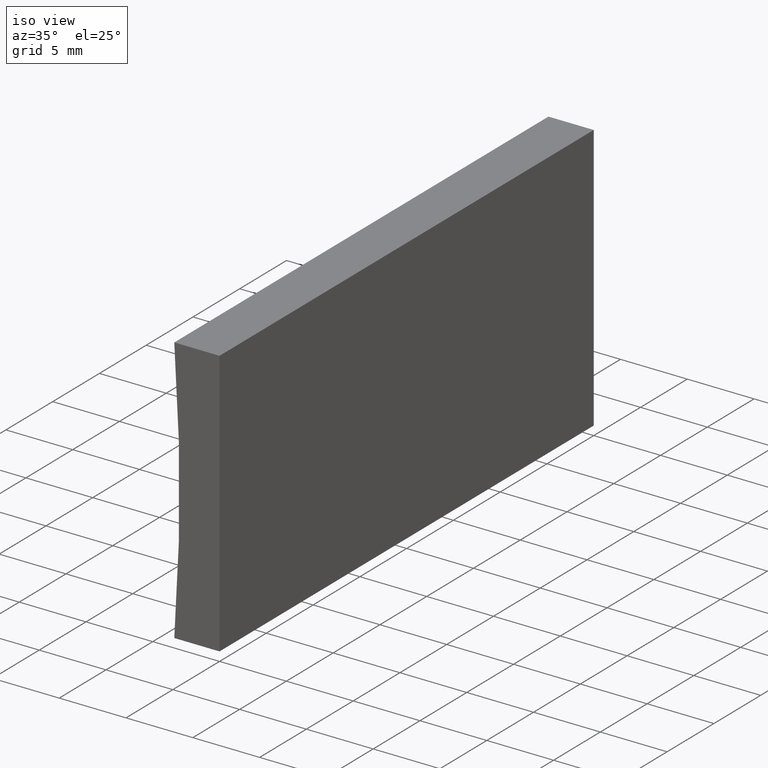
[diagram: clean part render]
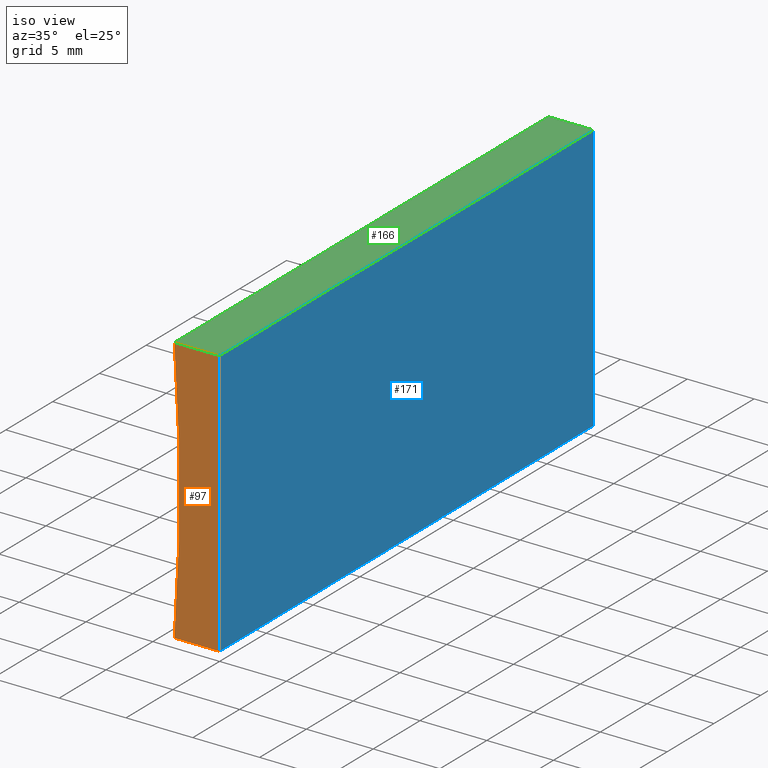
[diagram: same view with three faces highlighted in distinct colors, each labeled with its STEP entity id]
A machine part, iso view with three faces highlighted in distinct colors.
Their STEP definitions:

[orange] entity #97 — the highlighted planar face has unit normal (0, 1, 0).
#3 = EDGE_LOOP ( 'NONE', ( #196, #32, #201, #31 ) ) ;
#6 = CARTESIAN_POINT ( 'NONE',  ( 0.0000000000000000000, 0.0000000000000000000, 0.0000000000000000000 ) ) ;
#15 = PLANE ( 'NONE',  #30 ) ;
#18 = DIRECTION ( 'NONE',  ( 0.0000000000000000000, 1.000000000000000000, 0.0000000000000000000 ) ) ;
#22 = VERTEX_POINT ( 'NONE', #177 ) ;
#29 = VECTOR ( 'NONE', #121, 1000.000000000000000 ) ;
#30 = AXIS2_PLACEMENT_3D ( 'NONE', #138, #18, #65 ) ;
#31 = ORIENTED_EDGE ( 'NONE', *, *, #156, .F. ) ;
#32 = ORIENTED_EDGE ( 'NONE', *, *, #173, .F. ) ;
#35 = LINE ( 'NONE', #73, #45 ) ;
#45 = VECTOR ( 'NONE', #113, 1000.000000000000000 ) ;
#48 = AXIS2_PLACEMENT_3D ( 'NONE', #187, #199, #125 ) ;
#55 = VERTEX_POINT ( 'NONE', #105 ) ;
#65 = DIRECTION ( 'NONE',  ( 0.0000000000000000000, -0.0000000000000000000, 1.000000000000000000 ) ) ;
#73 = CARTESIAN_POINT ( 'NONE',  ( 0.0000000000000000000, 0.0000000000000000000, 0.0000000000000000000 ) ) ;
#81 = EDGE_CURVE ( 'NONE', #149, #22, #150, .T. ) ;
#83 = CIRCLE ( 'NONE', #48, 129.2500000000000000 ) ;
#85 = LINE ( 'NONE', #6, #29 ) ;
#94 = CARTESIAN_POINT ( 'NONE',  ( -3.387427854322250000, 0.0000000000000000000, 1.214306433183765000E-014 ) ) ;
#97 = ADVANCED_FACE ( 'NONE', ( #170 ), #15, .F. ) ;
#105 = CARTESIAN_POINT ( 'NONE',  ( 0.0000000000000000000, 0.0000000000000000000, 0.0000000000000000000 ) ) ;
#109 = VECTOR ( 'NONE', #195, 1000.000000000000000 ) ;
#112 = VERTEX_POINT ( 'NONE', #94 ) ;
#113 = DIRECTION ( 'NONE',  ( -6.123233995736766000E-017, -0.0000000000000000000, -1.000000000000000000 ) ) ;
#120 = CARTESIAN_POINT ( 'NONE',  ( -3.387427854322250500, 0.0000000000000000000, 20.00000000000000000 ) ) ;
#121 = DIRECTION ( 'NONE',  ( -1.000000000000000000, 0.0000000000000000000, 0.0000000000000000000 ) ) ;
#125 = DIRECTION ( 'NONE',  ( 0.0000000000000000000, 0.0000000000000000000, 1.000000000000000000 ) ) ;
#138 = CARTESIAN_POINT ( 'NONE',  ( -132.2500000000000000, 0.0000000000000000000, 10.00000000000001600 ) ) ;
#149 = VERTEX_POINT ( 'NONE', #120 ) ;
#150 = LINE ( 'NONE', #202, #109 ) ;
#156 = EDGE_CURVE ( 'NONE', #112, #149, #83, .T. ) ;
#170 = FACE_OUTER_BOUND ( 'NONE', #3, .T. ) ;
#173 = EDGE_CURVE ( 'NONE', #22, #55, #35, .T. ) ;
#177 = CARTESIAN_POINT ( 'NONE',  ( 1.224646799147353300E-015, 0.0000000000000000000, 20.00000000000000000 ) ) ;
#178 = EDGE_CURVE ( 'NONE', #55, #112, #85, .T. ) ;
#187 = CARTESIAN_POINT ( 'NONE',  ( -132.2500000000000000, 0.0000000000000000000, 10.00000000000001600 ) ) ;
#195 = DIRECTION ( 'NONE',  ( 1.000000000000000000, -0.0000000000000000000, -0.0000000000000000000 ) ) ;
#196 = ORIENTED_EDGE ( 'NONE', *, *, #178, .F. ) ;
#199 = DIRECTION ( 'NONE',  ( -0.0000000000000000000, -1.000000000000000000, -0.0000000000000000000 ) ) ;
#201 = ORIENTED_EDGE ( 'NONE', *, *, #81, .F. ) ;
#202 = CARTESIAN_POINT ( 'NONE',  ( 1.224646799147353300E-015, 0.0000000000000000000, 20.00000000000000000 ) ) ;

[blue] entity #171 — the highlighted planar face has unit normal (-1, 0, 0).
#8 = EDGE_CURVE ( 'NONE', #13, #55, #180, .T. ) ;
#13 = VERTEX_POINT ( 'NONE', #161 ) ;
#17 = ORIENTED_EDGE ( 'NONE', *, *, #135, .F. ) ;
#22 = VERTEX_POINT ( 'NONE', #177 ) ;
#27 = LINE ( 'NONE', #46, #144 ) ;
#34 = CARTESIAN_POINT ( 'NONE',  ( 1.224646799147353300E-015, 40.00000000000000000, 20.00000000000000000 ) ) ;
#35 = LINE ( 'NONE', #73, #45 ) ;
#41 = EDGE_CURVE ( 'NONE', #126, #22, #80, .T. ) ;
#45 = VECTOR ( 'NONE', #113, 1000.000000000000000 ) ;
#46 = CARTESIAN_POINT ( 'NONE',  ( 0.0000000000000000000, 40.00000000000000000, 0.0000000000000000000 ) ) ;
#51 = CARTESIAN_POINT ( 'NONE',  ( 0.0000000000000000000, 40.00000000000000000, 0.0000000000000000000 ) ) ;
#55 = VERTEX_POINT ( 'NONE', #105 ) ;
#63 = CARTESIAN_POINT ( 'NONE',  ( 1.224646799147353300E-015, 40.00000000000000000, 20.00000000000000000 ) ) ;
#73 = CARTESIAN_POINT ( 'NONE',  ( 0.0000000000000000000, 0.0000000000000000000, 0.0000000000000000000 ) ) ;
#76 = PLANE ( 'NONE',  #129 ) ;
#80 = LINE ( 'NONE', #34, #200 ) ;
#87 = ORIENTED_EDGE ( 'NONE', *, *, #173, .T. ) ;
#92 = DIRECTION ( 'NONE',  ( -1.000000000000000000, 0.0000000000000000000, 6.123233995736766000E-017 ) ) ;
#102 = ORIENTED_EDGE ( 'NONE', *, *, #8, .F. ) ;
#105 = CARTESIAN_POINT ( 'NONE',  ( 0.0000000000000000000, 0.0000000000000000000, 0.0000000000000000000 ) ) ;
#108 = ORIENTED_EDGE ( 'NONE', *, *, #41, .T. ) ;
#113 = DIRECTION ( 'NONE',  ( -6.123233995736766000E-017, -0.0000000000000000000, -1.000000000000000000 ) ) ;
#114 = DIRECTION ( 'NONE',  ( -6.123233995736766000E-017, -0.0000000000000000000, -1.000000000000000000 ) ) ;
#126 = VERTEX_POINT ( 'NONE', #63 ) ;
#129 = AXIS2_PLACEMENT_3D ( 'NONE', #183, #92, #153 ) ;
#135 = EDGE_CURVE ( 'NONE', #126, #13, #27, .T. ) ;
#143 = DIRECTION ( 'NONE',  ( -0.0000000000000000000, -1.000000000000000000, -0.0000000000000000000 ) ) ;
#144 = VECTOR ( 'NONE', #114, 1000.000000000000000 ) ;
#153 = DIRECTION ( 'NONE',  ( 6.123233995736766000E-017, 0.0000000000000000000, 1.000000000000000000 ) ) ;
#161 = CARTESIAN_POINT ( 'NONE',  ( 0.0000000000000000000, 40.00000000000000000, 0.0000000000000000000 ) ) ;
#163 = FACE_OUTER_BOUND ( 'NONE', #168, .T. ) ;
#168 = EDGE_LOOP ( 'NONE', ( #87, #102, #17, #108 ) ) ;
#171 = ADVANCED_FACE ( 'NONE', ( #163 ), #76, .F. ) ;
#173 = EDGE_CURVE ( 'NONE', #22, #55, #35, .T. ) ;
#177 = CARTESIAN_POINT ( 'NONE',  ( 1.224646799147353300E-015, 0.0000000000000000000, 20.00000000000000000 ) ) ;
#179 = DIRECTION ( 'NONE',  ( -0.0000000000000000000, -1.000000000000000000, -0.0000000000000000000 ) ) ;
#180 = LINE ( 'NONE', #51, #197 ) ;
#183 = CARTESIAN_POINT ( 'NONE',  ( 0.0000000000000000000, 40.00000000000000000, 0.0000000000000000000 ) ) ;
#197 = VECTOR ( 'NONE', #179, 1000.000000000000000 ) ;
#200 = VECTOR ( 'NONE', #143, 1000.000000000000000 ) ;

[green] entity #166 — the highlighted planar face has unit normal (0, 0, -1).
#12 = ORIENTED_EDGE ( 'NONE', *, *, #74, .F. ) ;
#21 = AXIS2_PLACEMENT_3D ( 'NONE', #152, #139, #128 ) ;
#22 = VERTEX_POINT ( 'NONE', #177 ) ;
#33 = VECTOR ( 'NONE', #164, 1000.000000000000000 ) ;
#34 = CARTESIAN_POINT ( 'NONE',  ( 1.224646799147353300E-015, 40.00000000000000000, 20.00000000000000000 ) ) ;
#36 = EDGE_CURVE ( 'NONE', #122, #149, #158, .T. ) ;
#41 = EDGE_CURVE ( 'NONE', #126, #22, #80, .T. ) ;
#63 = CARTESIAN_POINT ( 'NONE',  ( 1.224646799147353300E-015, 40.00000000000000000, 20.00000000000000000 ) ) ;
#68 = ORIENTED_EDGE ( 'NONE', *, *, #36, .T. ) ;
#72 = CARTESIAN_POINT ( 'NONE',  ( 1.224646799147353300E-015, 40.00000000000000000, 20.00000000000000000 ) ) ;
#74 = EDGE_CURVE ( 'NONE', #122, #126, #188, .T. ) ;
#77 = ORIENTED_EDGE ( 'NONE', *, *, #41, .F. ) ;
#80 = LINE ( 'NONE', #34, #200 ) ;
#81 = EDGE_CURVE ( 'NONE', #149, #22, #150, .T. ) ;
#84 = ORIENTED_EDGE ( 'NONE', *, *, #81, .T. ) ;
#109 = VECTOR ( 'NONE', #195, 1000.000000000000000 ) ;
#110 = FACE_OUTER_BOUND ( 'NONE', #185, .T. ) ;
#117 = DIRECTION ( 'NONE',  ( 1.000000000000000000, -0.0000000000000000000, -0.0000000000000000000 ) ) ;
#120 = CARTESIAN_POINT ( 'NONE',  ( -3.387427854322250500, 0.0000000000000000000, 20.00000000000000000 ) ) ;
#122 = VERTEX_POINT ( 'NONE', #133 ) ;
#124 = VECTOR ( 'NONE', #117, 1000.000000000000000 ) ;
#126 = VERTEX_POINT ( 'NONE', #63 ) ;
#128 = DIRECTION ( 'NONE',  ( -1.000000000000000000, 0.0000000000000000000, -0.0000000000000000000 ) ) ;
#133 = CARTESIAN_POINT ( 'NONE',  ( -3.387427854322250500, 40.00000000000000000, 20.00000000000000000 ) ) ;
#139 = DIRECTION ( 'NONE',  ( 0.0000000000000000000, 0.0000000000000000000, -1.000000000000000000 ) ) ;
#143 = DIRECTION ( 'NONE',  ( -0.0000000000000000000, -1.000000000000000000, -0.0000000000000000000 ) ) ;
#149 = VERTEX_POINT ( 'NONE', #120 ) ;
#150 = LINE ( 'NONE', #202, #109 ) ;
#152 = CARTESIAN_POINT ( 'NONE',  ( 1.224646799147353300E-015, 40.00000000000000000, 20.00000000000000000 ) ) ;
#158 = LINE ( 'NONE', #167, #33 ) ;
#164 = DIRECTION ( 'NONE',  ( -0.0000000000000000000, -1.000000000000000000, -0.0000000000000000000 ) ) ;
#166 = ADVANCED_FACE ( 'NONE', ( #110 ), #192, .F. ) ;
#167 = CARTESIAN_POINT ( 'NONE',  ( -3.387427854322250500, 40.00000000000000000, 20.00000000000000000 ) ) ;
#177 = CARTESIAN_POINT ( 'NONE',  ( 1.224646799147353300E-015, 0.0000000000000000000, 20.00000000000000000 ) ) ;
#185 = EDGE_LOOP ( 'NONE', ( #84, #77, #12, #68 ) ) ;
#188 = LINE ( 'NONE', #72, #124 ) ;
#192 = PLANE ( 'NONE',  #21 ) ;
#195 = DIRECTION ( 'NONE',  ( 1.000000000000000000, -0.0000000000000000000, -0.0000000000000000000 ) ) ;
#200 = VECTOR ( 'NONE', #143, 1000.000000000000000 ) ;
#202 = CARTESIAN_POINT ( 'NONE',  ( 1.224646799147353300E-015, 0.0000000000000000000, 20.00000000000000000 ) ) ;